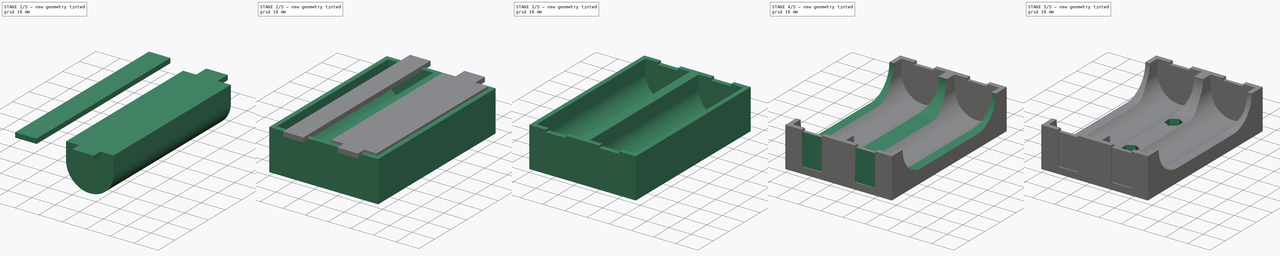
[diagram: build sequence overview — one tinted view per stage of 5, left to right]
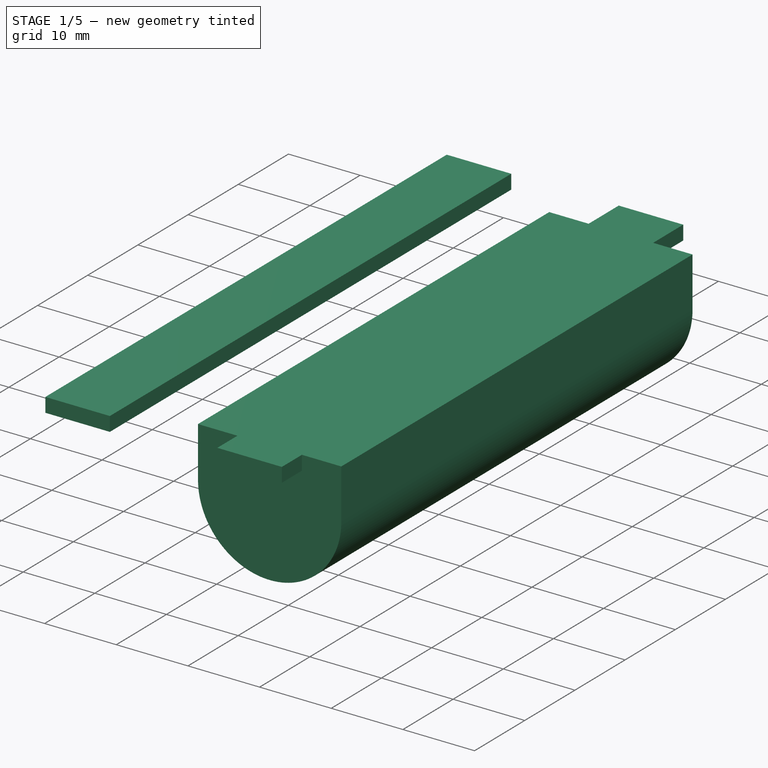
[diagram: stage 1 of 5 — iso view after this stage's code; geometry added in this stage tinted green]
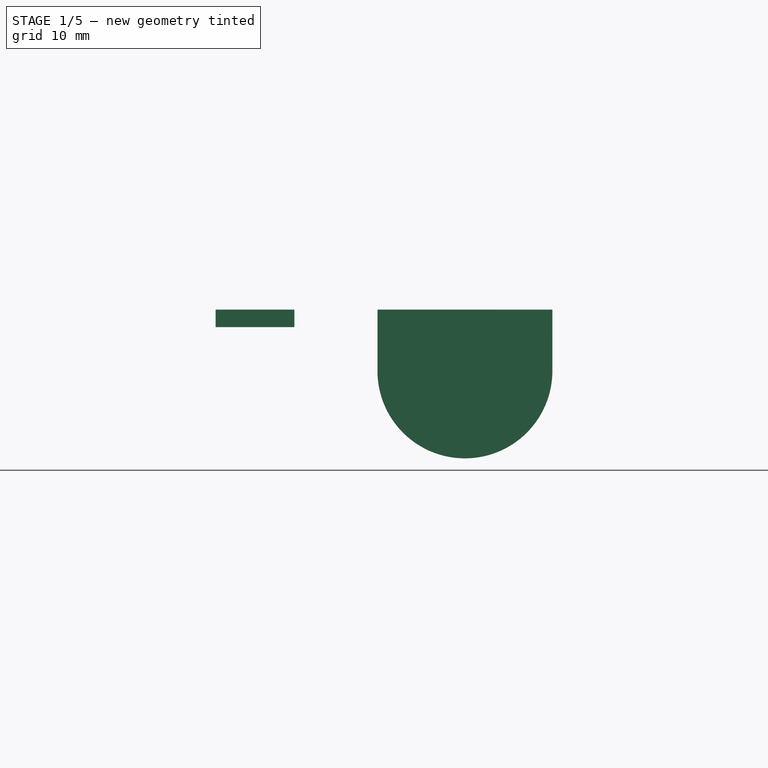
[diagram: stage 1 of 5 — front view after this stage's code; geometry added in this stage tinted green]
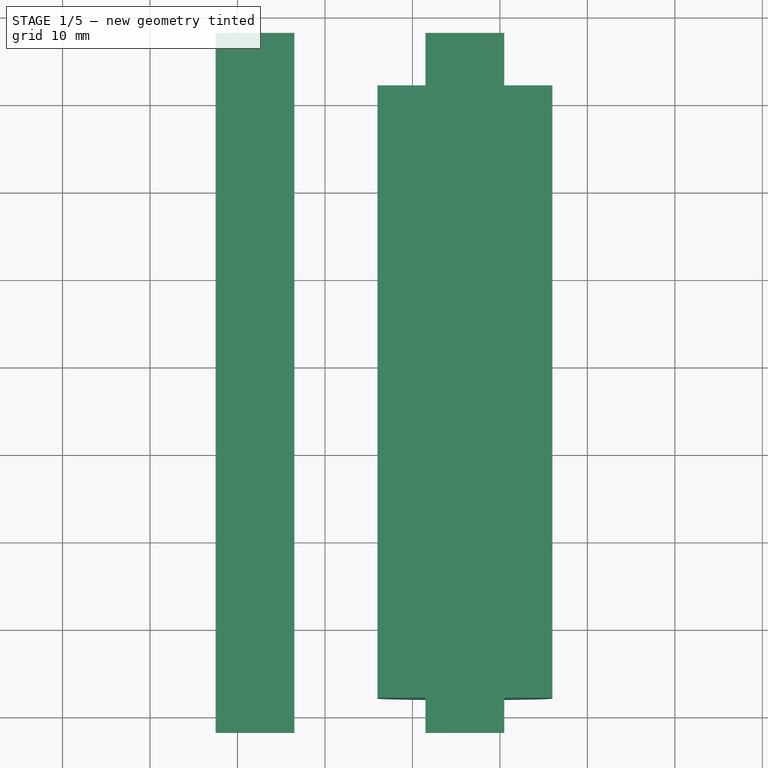
[diagram: stage 1 of 5 — top view after this stage's code; geometry added in this stage tinted green]
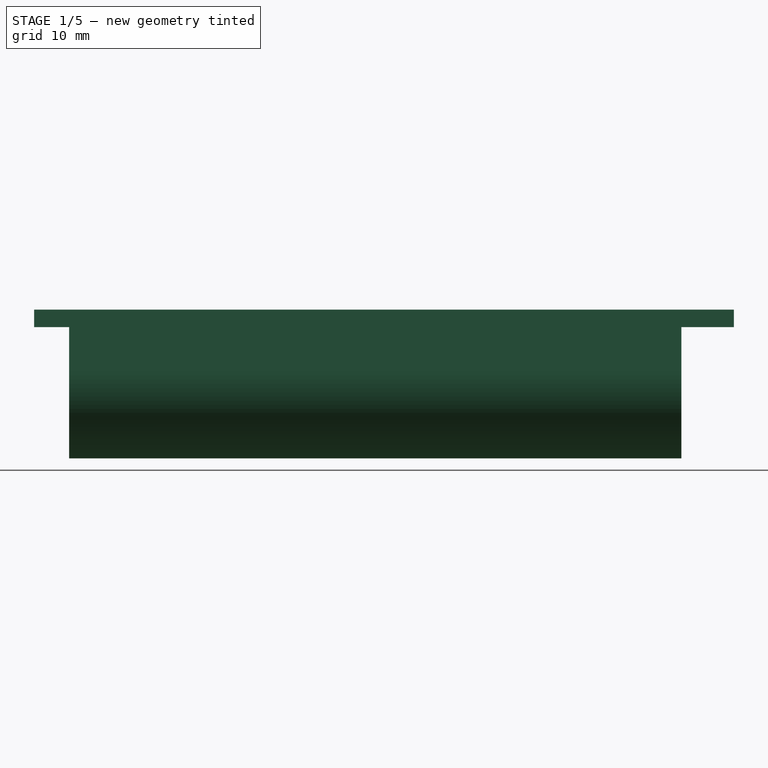
[diagram: stage 1 of 5 — right view after this stage's code; geometry added in this stage tinted green]
FCSTD DOCUMENT
Label: BatterySled
objects: Sketcher::SketchObject×10, PartDesign::Pocket×6, PartDesign::Pad×5, Part::Cut×4, App::DocumentObjectGroup×1
note: 30 computed .brp shape members not serialized (recipe doc carries the construction recipe); baked Part::Feature solids carry a one-line shape summary decoded from their .brp

FEATURE [Sketcher::SketchObject] Sketch002
  Placement = pos=(0,0,0) rot=(1,0,0;1.5708rad)
  sketch-geometry (4):
    g0: LineSegment StartX=25 StartY=19 StartZ=0 EndX=45 EndY=19 EndZ=0
    g1: LineSegment StartX=45 StartY=19 StartZ=0 EndX=45 EndY=12 EndZ=0
    g2: LineSegment StartX=25 StartY=12 StartZ=0 EndX=25 EndY=19 EndZ=0
    g3: ArcOfCircle CenterX=35 CenterY=12 CenterZ=0 NormalX=0 NormalY=0 NormalZ=1 Radius=10 StartAngle=3.14159 EndAngle=6.28319
  constraints (13):
    c: Coincident(g0,g1)
    c: Coincident(g2,g0)
    c: Horizontal(g0)
    c: Vertical(g1)
    c: Vertical(g2)
    c: Coincident(g3,g1)
    c: Coincident(g3,g2)
    c: Tangent(g3,g2)
    c: DistanceX(g0) = 20
    c: DistanceY(g2) = 7
    c: Tangent(g3,g1)
    c: DistanceX(g3) = 35
    c: DistanceY(g3) = 12
FEATURE [PartDesign::Pad] Pad002
  Length = 70
  MirroredExtent = false
  Placement = pos=(1,72,0) rot=(0,0,1;0rad)
  Sketch = -> Sketch002
FEATURE [Sketcher::SketchObject] Sketch003
  Placement = pos=(0,0,0) rot=(1,0,0;1.5708rad)
  sketch-geometry (4):
    g0: LineSegment StartX=7.5 StartY=17 StartZ=0 EndX=16.5 EndY=17 EndZ=0
    g1: LineSegment StartX=16.5 StartY=17 StartZ=0 EndX=16.5 EndY=19 EndZ=0
    g2: LineSegment StartX=16.5 StartY=19 StartZ=0 EndX=7.5 EndY=19 EndZ=0
    g3: LineSegment StartX=7.5 StartY=19 StartZ=0 EndX=7.5 EndY=17 EndZ=0
  constraints (12):
    c: Coincident(g0,g1)
    c: Coincident(g1,g2)
    c: Coincident(g2,g3)
    c: Coincident(g3,g0)
    c: Horizontal(g0)
    c: Horizontal(g2)
    c: Vertical(g1)
    c: Vertical(g3)
    c: DistanceX(g0) = 9
    c: DistanceY(g3) = -2
    c: DistanceX(g0) = 7.5
    c: DistanceY(g0) = 17
FEATURE [PartDesign::Pad] Pad003
  Length = 80
  MirroredExtent = false
  Placement = pos=(0,78,0) rot=(0,0,1;0rad)
  Sketch = -> Sketch003
FEATURE [PartDesign::Pad] Pad004
  Length = 80
  MirroredExtent = false
  Placement = pos=(24,78,0) rot=(0,0,1;0rad)
  Sketch = -> Sketch003
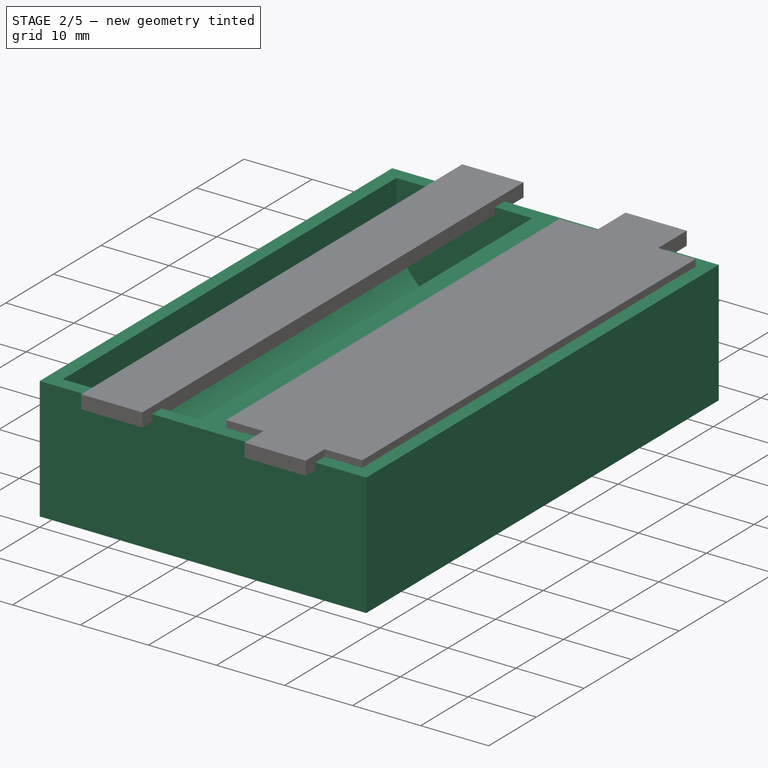
[diagram: stage 2 of 5 — iso view after this stage's code; geometry added in this stage tinted green]
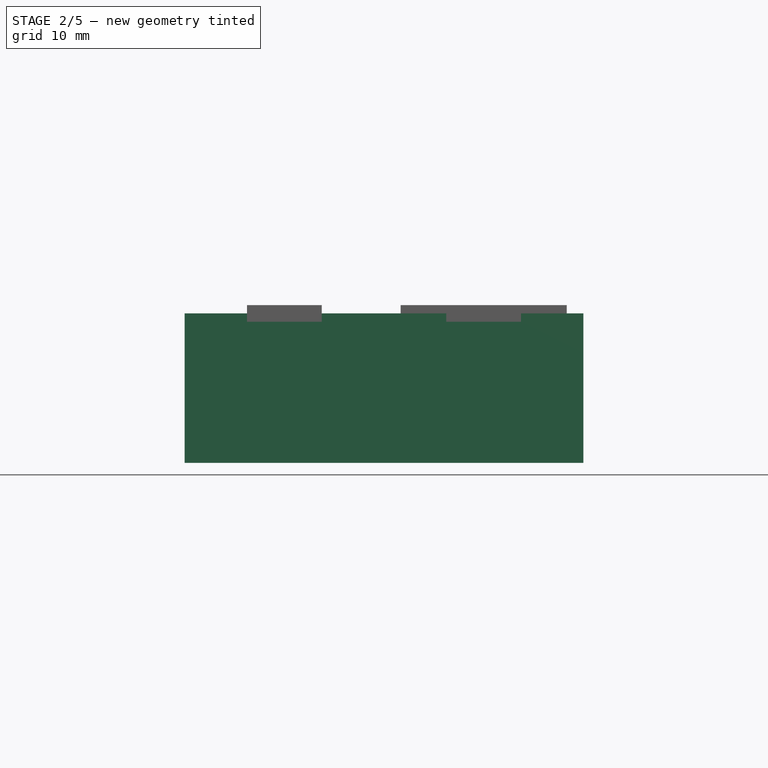
[diagram: stage 2 of 5 — front view after this stage's code; geometry added in this stage tinted green]
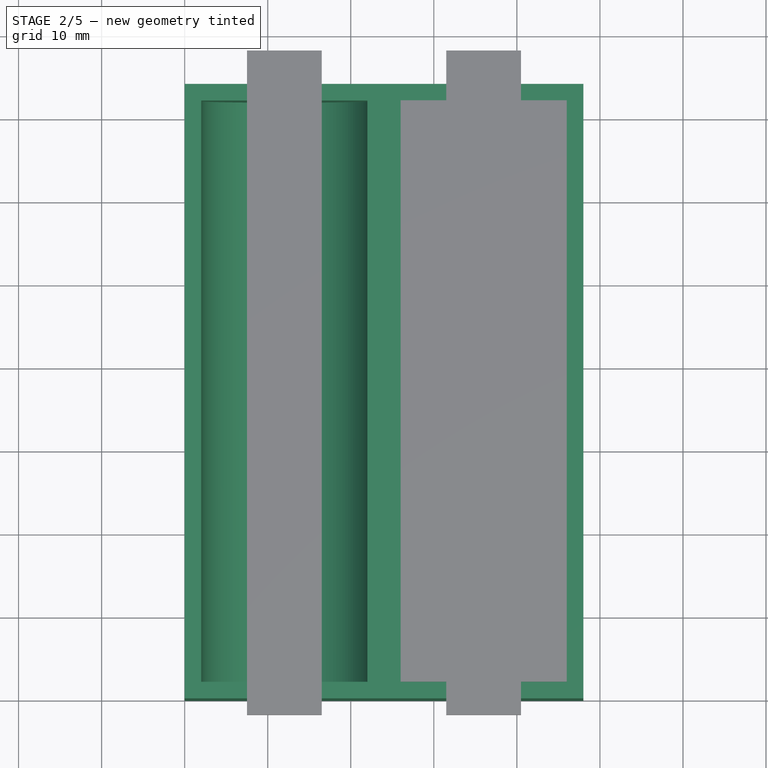
[diagram: stage 2 of 5 — top view after this stage's code; geometry added in this stage tinted green]
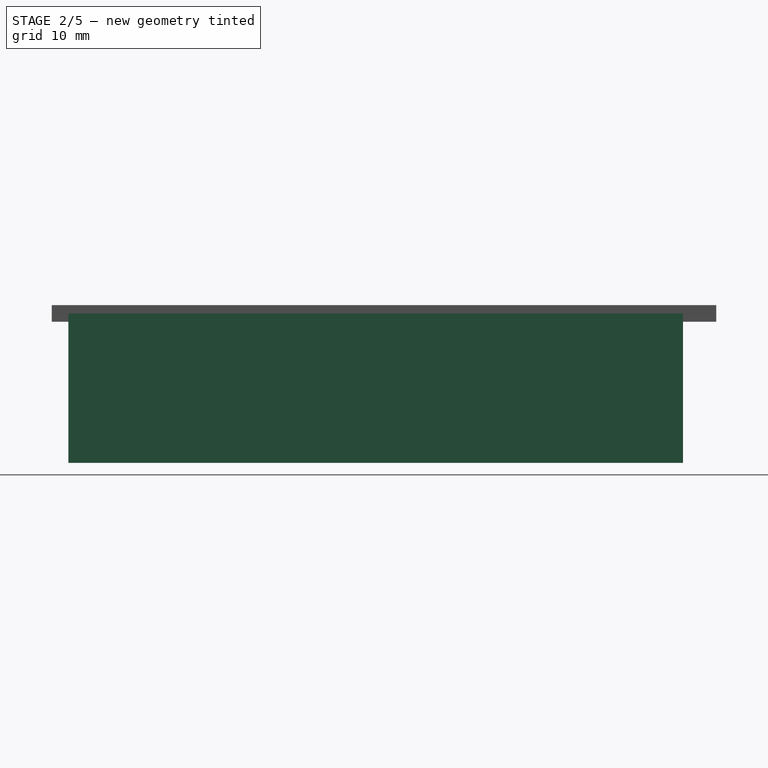
[diagram: stage 2 of 5 — right view after this stage's code; geometry added in this stage tinted green]
FEATURE [Sketcher::SketchObject] Sketch
  sketch-geometry (4):
    g0: LineSegment StartX=0 StartY=0 StartZ=0 EndX=48 EndY=0 EndZ=0
    g1: LineSegment StartX=48 StartY=0 StartZ=0 EndX=48 EndY=74 EndZ=0
    g2: LineSegment StartX=48 StartY=74 StartZ=0 EndX=0 EndY=74 EndZ=0
    g3: LineSegment StartX=0 StartY=74 StartZ=0 EndX=0 EndY=0 EndZ=0
  constraints (12):
    c: Coincident(g0,g1)
    c: Coincident(g1,g2)
    c: Coincident(g2,g3)
    c: Coincident(g3,g0)
    c: Horizontal(g0)
    c: Horizontal(g2)
    c: Vertical(g1)
    c: Vertical(g3)
    c: DistanceY(g3) = -74
    c: DistanceX(g0) = 48
    c: DistanceX(g0) = 0
    c: DistanceY(g0) = 0
FEATURE [PartDesign::Pad] Pad
  Length = 18
  MirroredExtent = false
  Sketch = -> Sketch
FEATURE [Sketcher::SketchObject] Sketch001
  Placement = pos=(0,0,0) rot=(1,0,0;1.5708rad)
  sketch-geometry (4):
    g0: LineSegment StartX=2 StartY=19 StartZ=0 EndX=22 EndY=19 EndZ=0
    g1: LineSegment StartX=22 StartY=19 StartZ=0 EndX=22 EndY=12 EndZ=0
    g2: LineSegment StartX=2 StartY=12 StartZ=0 EndX=2 EndY=19 EndZ=0
    g3: ArcOfCircle CenterX=12 CenterY=12 CenterZ=0 NormalX=0 NormalY=0 NormalZ=1 Radius=10 StartAngle=3.1416 EndAngle=6.28319
  constraints (13):
    c: Coincident(g0,g1)
    c: Coincident(g2,g0)
    c: Horizontal(g0)
    c: Vertical(g1)
    c: Vertical(g2)
    c: Coincident(g3,g1)
    c: Coincident(g3,g2)
    c: Tangent(g3,g2)
    c: DistanceX(g0) = 20
    c: DistanceY(g2) = 7
    c: Tangent(g3,g1)
    c: DistanceX(g3) = 12
    c: DistanceY(g3) = 12
FEATURE [PartDesign::Pad] Pad001
  Length = 70
  MirroredExtent = false
  Placement = pos=(0,72,0) rot=(0,0,1;0rad)
  Sketch = -> Sketch001
FEATURE [Part::Cut] Cut
  Base = -> Pad
  Tool = -> Pad001
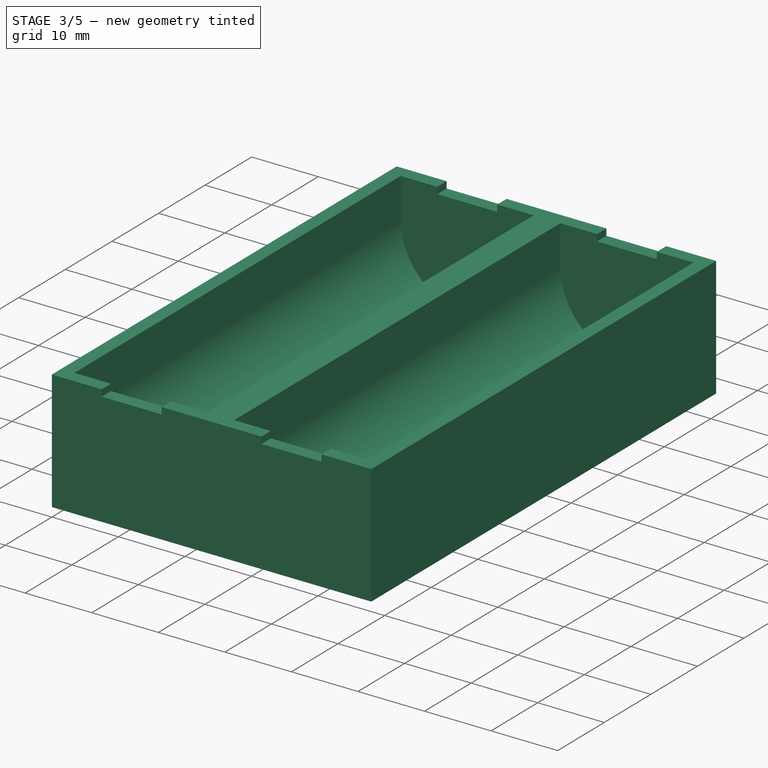
[diagram: stage 3 of 5 — iso view after this stage's code; geometry added in this stage tinted green]
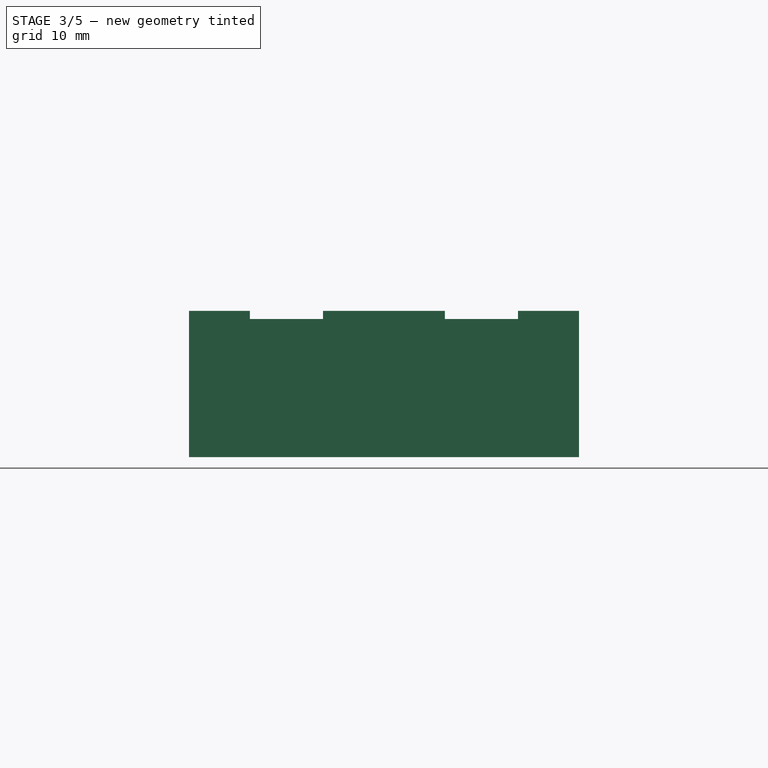
[diagram: stage 3 of 5 — front view after this stage's code; geometry added in this stage tinted green]
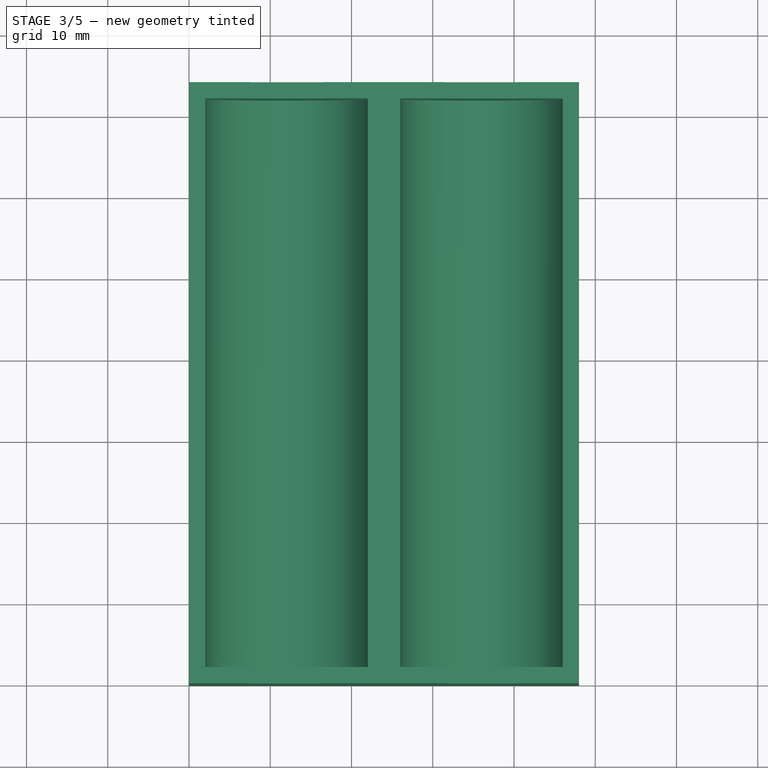
[diagram: stage 3 of 5 — top view after this stage's code; geometry added in this stage tinted green]
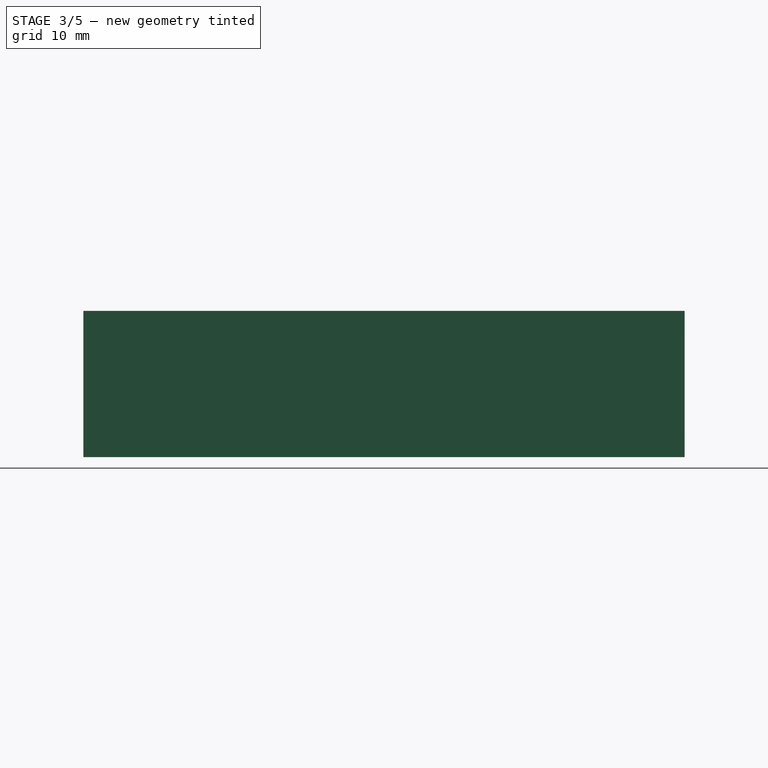
[diagram: stage 3 of 5 — right view after this stage's code; geometry added in this stage tinted green]
FEATURE [Part::Cut] Cut001
  Base = -> Cut
  Tool = -> Pad002
FEATURE [Part::Cut] Cut002
  Base = -> Cut001
  Tool = -> Pad003
FEATURE [Part::Cut] Cut003
  Base = -> Cut002
  Tool = -> Pad004
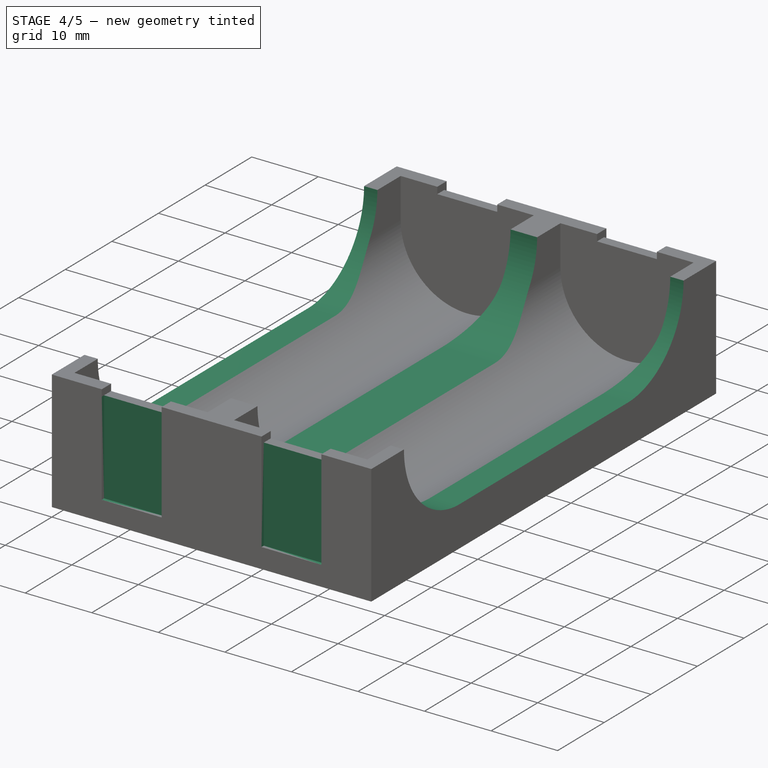
[diagram: stage 4 of 5 — iso view after this stage's code; geometry added in this stage tinted green]
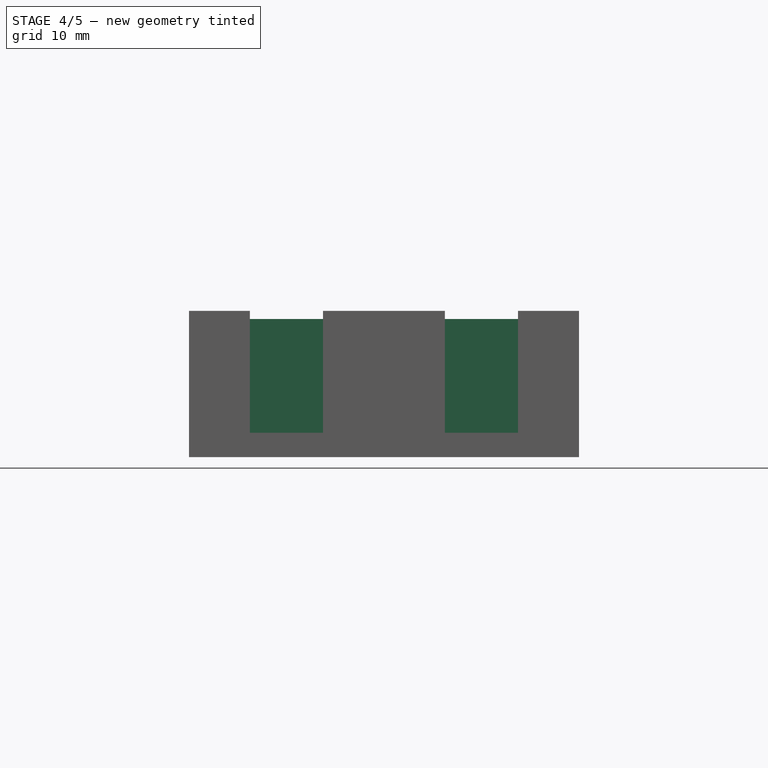
[diagram: stage 4 of 5 — front view after this stage's code; geometry added in this stage tinted green]
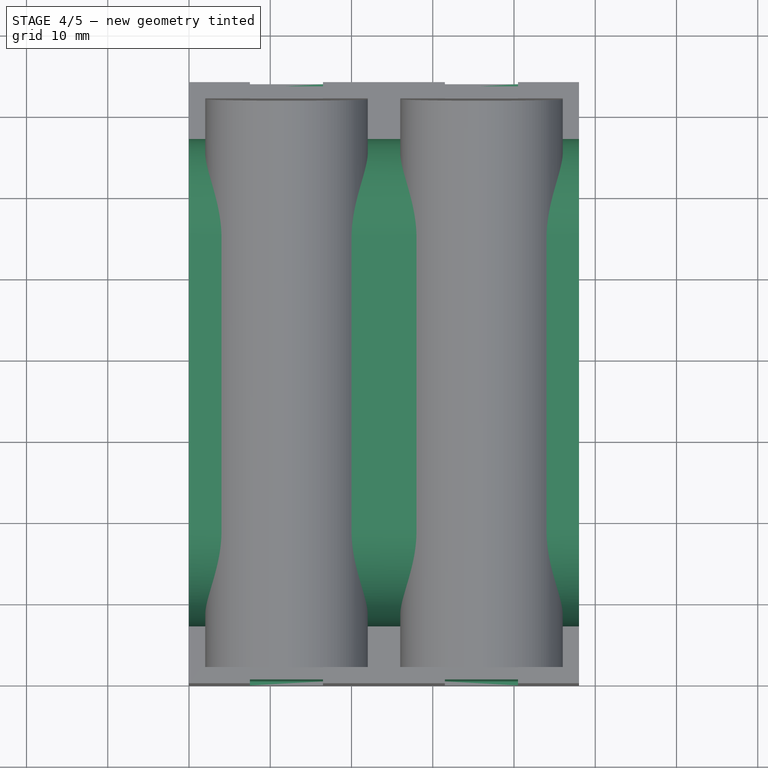
[diagram: stage 4 of 5 — top view after this stage's code; geometry added in this stage tinted green]
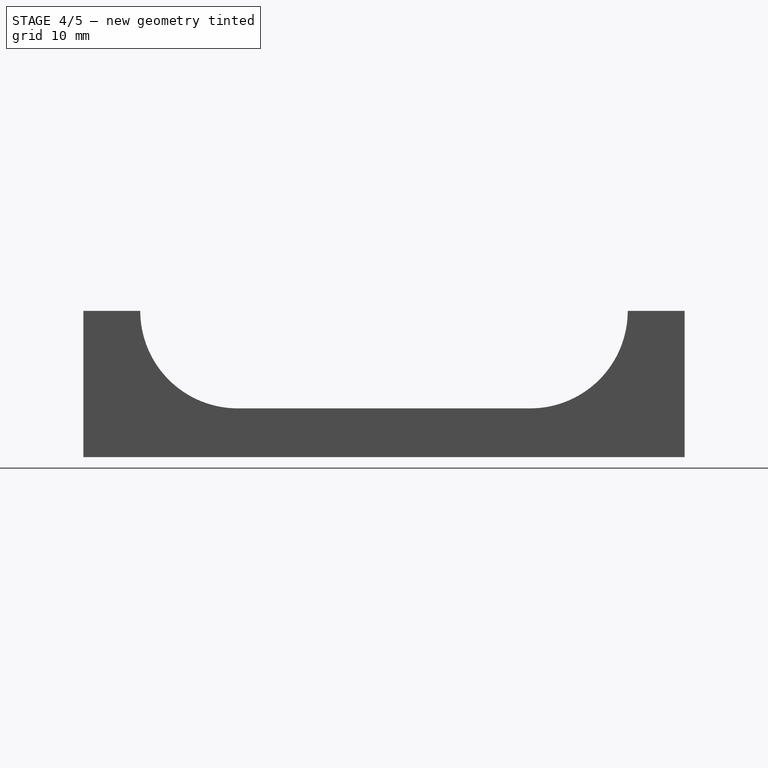
[diagram: stage 4 of 5 — right view after this stage's code; geometry added in this stage tinted green]
FEATURE [Sketcher::SketchObject] Sketch008
  Placement = pos=(0,74,0) rot=(0,0.707107,0.707107;3.14159rad)
  Support = -> Cut003 [Face2]
  sketch-geometry (9):
    g0: LineSegment StartX=-40.5 StartY=17 StartZ=0 EndX=-31.5 EndY=17 EndZ=0
    g1: LineSegment StartX=-31.5 StartY=17 StartZ=0 EndX=-31.5 EndY=3 EndZ=0
    g2: LineSegment StartX=-31.5 StartY=3 StartZ=0 EndX=-40.5 EndY=3 EndZ=0
    g3: LineSegment StartX=-40.5 StartY=3 StartZ=0 EndX=-40.5 EndY=17 EndZ=0
    g4: LineSegment StartX=-16.5 StartY=17 StartZ=0 EndX=-7.5 EndY=17 EndZ=0
    g5: LineSegment StartX=-7.5 StartY=17 StartZ=0 EndX=-7.5 EndY=3 EndZ=0
    g6: LineSegment StartX=-7.5 StartY=3 StartZ=0 EndX=-16.5 EndY=3 EndZ=0
    g7: LineSegment StartX=-16.5 StartY=3 StartZ=0 EndX=-16.5 EndY=17 EndZ=0
    g8: LineSegment [constr] StartX=-31.5 StartY=17 StartZ=0 EndX=-16.5 EndY=17 EndZ=0
  constraints (26):
    c: Coincident(g0,g1)
    c: Coincident(g1,g2)
    c: Coincident(g2,g3)
    c: Coincident(g3,g0)
    c: Horizontal(g0)
    c: Horizontal(g2)
    c: Vertical(g1)
    c: Vertical(g3)
    c: Coincident(g4,g5)
    c: Coincident(g5,g6)
    c: Coincident(g6,g7)
    c: Coincident(g7,g4)
    c: Horizontal(g4)
    c: Horizontal(g6)
    c: Vertical(g5)
    c: Vertical(g7)
    c: DistanceY(g3) = 14
    c: Equal(g7,g3)
    c: DistanceX(g0) = 9
    c: Equal(g4,g0)
    c: Horizontal(g8)
    c: Coincident(g8,g4)
    c: Coincident(g8,g0)
    c: DistanceX(g2) = -40.5
    c: DistanceY(g2) = 3
    c: DistanceX(g0,g4) = 15
FEATURE [App::DocumentObjectGroup] Group  label="BatterySled"
  Group = -> [Cut003]
FEATURE [PartDesign::Pocket] Pocket
  Length = 0.5
  Sketch = -> Sketch008
  Type = 0
FEATURE [Sketcher::SketchObject] Sketch006
  Placement = pos=(0,0,0) rot=(1,0,0;1.5708rad)
  Support = -> Pocket [Face3]
  sketch-geometry (9):
    g0: LineSegment StartX=7.5 StartY=17 StartZ=0 EndX=16.5 EndY=17 EndZ=0
    g1: LineSegment StartX=16.5 StartY=17 StartZ=0 EndX=16.5 EndY=3 EndZ=0
    g2: LineSegment StartX=16.5 StartY=3 StartZ=0 EndX=7.5 EndY=3 EndZ=0
    g3: LineSegment StartX=7.5 StartY=3 StartZ=0 EndX=7.5 EndY=17 EndZ=0
    g4: LineSegment StartX=31.5 StartY=3 StartZ=0 EndX=40.5 EndY=3 EndZ=0
    g5: LineSegment StartX=40.5 StartY=3 StartZ=0 EndX=40.5 EndY=17 EndZ=0
    g6: LineSegment StartX=40.5 StartY=17 StartZ=0 EndX=31.5 EndY=17 EndZ=0
    g7: LineSegment StartX=31.5 StartY=17 StartZ=0 EndX=31.5 EndY=3 EndZ=0
    g8: LineSegment [constr] StartX=31.5 StartY=17 StartZ=0 EndX=16.5 EndY=17 EndZ=0
  constraints (26):
    c: Coincident(g0,g1)
    c: Coincident(g1,g2)
    c: Coincident(g2,g3)
    c: Coincident(g3,g0)
    c: Horizontal(g0)
    c: Horizontal(g2)
    c: Vertical(g1)
    c: Vertical(g3)
    c: DistanceX(g0) = 9
    c: DistanceY(g3) = 14
    c: DistanceX(g2) = 7.5
    c: DistanceY(g2) = 3
    c: Coincident(g4,g5)
    c: Coincident(g5,g6)
    c: Coincident(g6,g7)
    c: Coincident(g7,g4)
    c: Horizontal(g4)
    c: Horizontal(g6)
    c: Vertical(g5)
    c: Vertical(g7)
    c: Equal(g6,g0)
    c: Equal(g7,g3)
    c: Horizontal(g8)
    c: Coincident(g8,g6)
    c: Coincident(g8,g0)
    c: DistanceX(g8) = -15
FEATURE [PartDesign::Pocket] Pocket001
  Length = 0.5
  Sketch = -> Sketch006
  Type = 0
FEATURE [Sketcher::SketchObject] Sketch009
  Placement = pos=(48,0,0) rot=(0.57735,0.57735,0.57735;2.0944rad)
  Support = -> Pocket001 [Face16]
  sketch-geometry (6):
    g0: ArcOfCircle CenterX=19 CenterY=18 CenterZ=0 NormalX=0 NormalY=0 NormalZ=1 Radius=12 StartAngle=3.14159 EndAngle=4.71239
    g1: LineSegment StartX=7 StartY=18 StartZ=0 EndX=19 EndY=18 EndZ=0
    g2: LineSegment StartX=19 StartY=18 StartZ=0 EndX=55 EndY=18 EndZ=0
    g3: LineSegment StartX=55 StartY=18 StartZ=0 EndX=67 EndY=18 EndZ=0
    g4: ArcOfCircle CenterX=55 CenterY=18 CenterZ=0 NormalX=0 NormalY=0 NormalZ=1 Radius=12 StartAngle=4.71239 EndAngle=6.28319
    g5: LineSegment StartX=19 StartY=6 StartZ=0 EndX=55 EndY=6 EndZ=0
  constraints (18):
    c: Horizontal(g1)
    c: Horizontal(g2)
    c: Horizontal(g3)
    c: Horizontal(g5)
    c: Coincident(g1,g0)
    c: Coincident(g1,g0)
    c: Coincident(g2,g0)
    c: Coincident(g4,g2)
    c: Coincident(g3,g2)
    c: Coincident(g4,g3)
    c: Coincident(g4,g5)
    c: Coincident(g5,g0)
    c: Tangent(g5,g0)
    c: Tangent(g5,g4)
    c: DistanceX(g1) = 12
    c: DistanceX(g2) = 36
    c: DistanceX(g0) = 7
    c: DistanceY(g0) = 18
FEATURE [PartDesign::Pocket] Pocket002
  Length = 48
  Sketch = -> Sketch009
  Type = 0
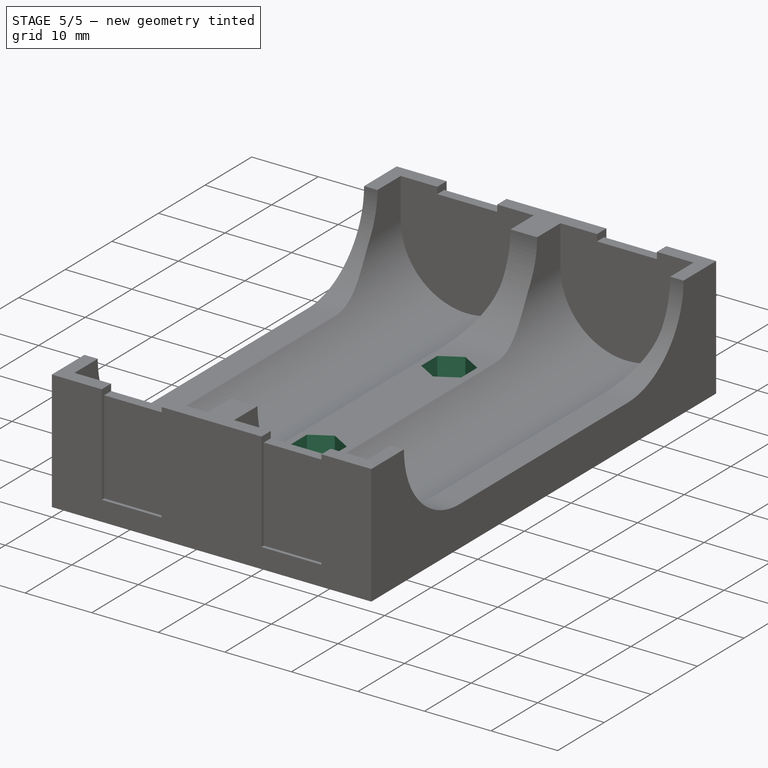
[diagram: stage 5 of 5 — iso view after this stage's code; geometry added in this stage tinted green]
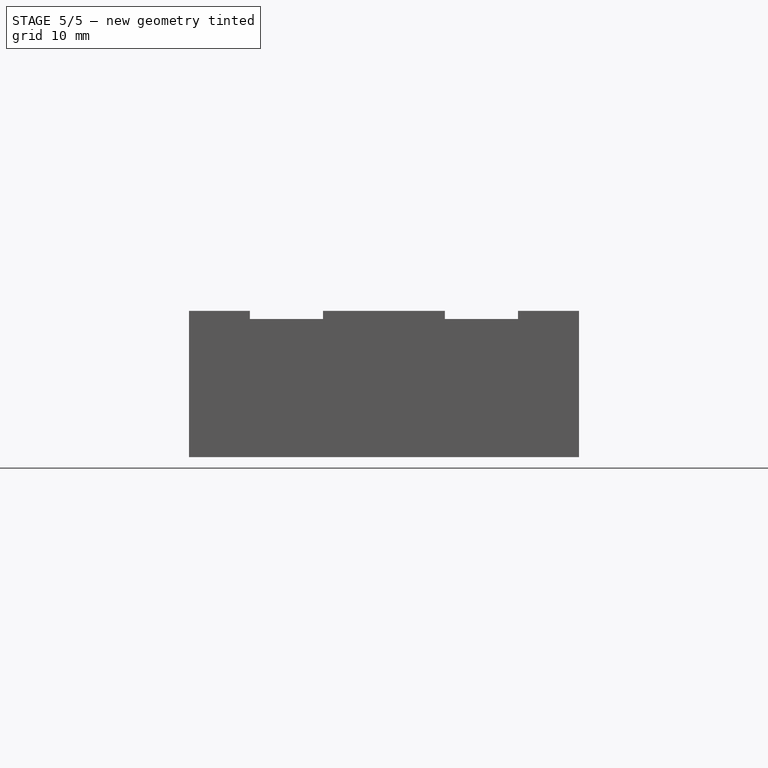
[diagram: stage 5 of 5 — front view after this stage's code; geometry added in this stage tinted green]
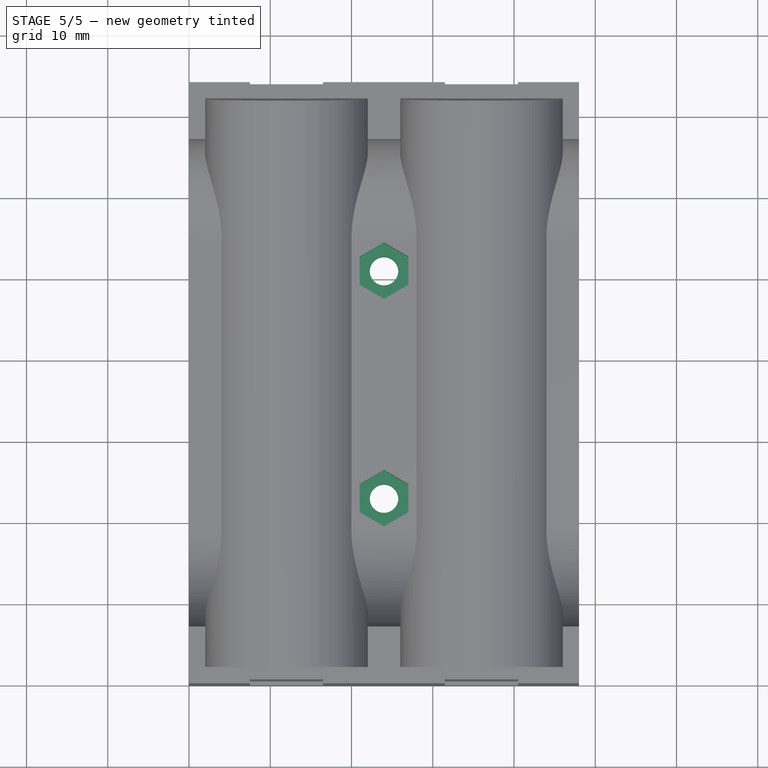
[diagram: stage 5 of 5 — top view after this stage's code; geometry added in this stage tinted green]
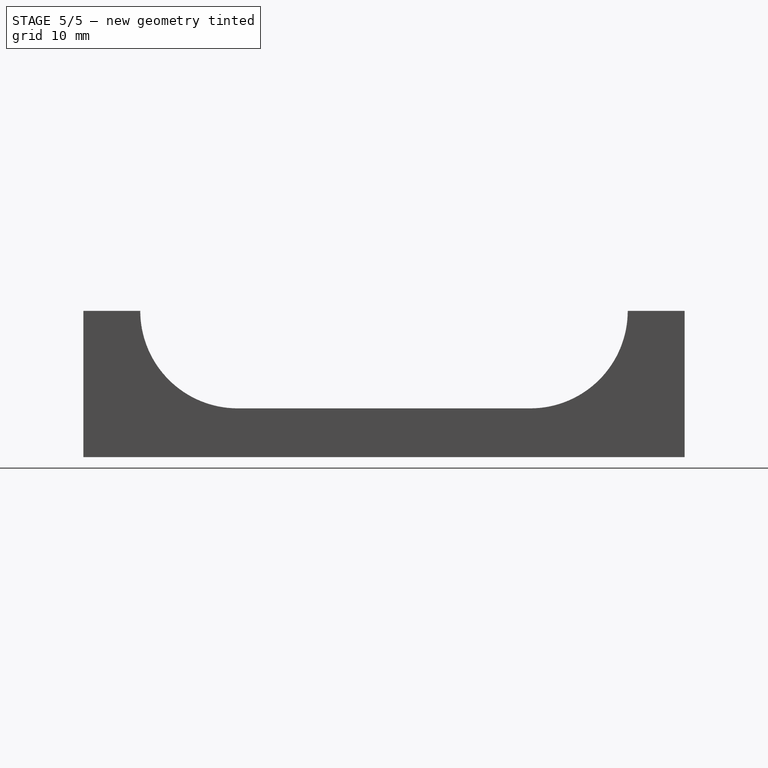
[diagram: stage 5 of 5 — right view after this stage's code; geometry added in this stage tinted green]
FEATURE [Sketcher::SketchObject] Sketch010
  Placement = pos=(0,0,6) rot=(0,0,1;0rad)
  Support = -> Pocket002 [Face40]
  sketch-geometry (12):
    g0: LineSegment StartX=21 StartY=21.2679 StartZ=0 EndX=21 EndY=24.7321 EndZ=0
    g1: LineSegment StartX=21 StartY=24.7321 StartZ=0 EndX=24 EndY=26.4641 EndZ=0
    g2: LineSegment StartX=24 StartY=26.4641 StartZ=0 EndX=27 EndY=24.7321 EndZ=0
    g3: LineSegment StartX=27 StartY=24.7321 StartZ=0 EndX=27 EndY=21.2679 EndZ=0
    g4: LineSegment StartX=27 StartY=21.2679 StartZ=0 EndX=24 EndY=19.5359 EndZ=0
    g5: LineSegment StartX=24 StartY=19.5359 StartZ=0 EndX=21 EndY=21.2679 EndZ=0
    g6: LineSegment [constr] StartX=24 StartY=26.4641 StartZ=0 EndX=24 EndY=23 EndZ=0
    g7: LineSegment [constr] StartX=24 StartY=23 StartZ=0 EndX=24 EndY=19.5359 EndZ=0
    g8: LineSegment [constr] StartX=24 StartY=23 StartZ=0 EndX=27 EndY=24.7321 EndZ=0
    g9: LineSegment [constr] StartX=24 StartY=23 StartZ=0 EndX=27 EndY=21.2679 EndZ=0
    g10: LineSegment [constr] StartX=24 StartY=23 StartZ=0 EndX=21 EndY=24.7321 EndZ=0
    g11: LineSegment [constr] StartX=24 StartY=23 StartZ=0 EndX=21 EndY=21.2679 EndZ=0
  constraints (31):
    c: Vertical(g0)
    c: Coincident(g0,g1)
    c: Coincident(g1,g2)
    c: Coincident(g2,g3)
    c: Vertical(g3)
    c: Coincident(g3,g4)
    c: Coincident(g4,g5)
    c: Coincident(g5,g0)
    c: Coincident(g6,g7)
    c: Coincident(g10,g11)
    c: Coincident(g9,g8)
    c: Coincident(g8,g6)
    c: Coincident(g10,g6)
    c: Vertical(g6)
    c: Vertical(g7)
    c: Coincident(g6,g1)
    c: Coincident(g10,g0)
    c: Coincident(g11,g0)
    c: Coincident(g4,g7)
    c: Coincident(g9,g3)
    c: Coincident(g8,g2)
    c: Equal(g10,g11)
    c: Equal(g11,g7)
    c: Equal(g9,g7)
    c: Equal(g9,g8)
    c: Equal(g8,g6)
    c: Equal(g1,g0)
    c: Equal(g3,g4)
    c: DistanceX(g0,g3) = 6
    c: DistanceX(g6) = 24
    c: DistanceY(g6) = 23
FEATURE [PartDesign::Pocket] Pocket003
  Length = 3
  Sketch = -> Sketch010
  Type = 0
FEATURE [Sketcher::SketchObject] Sketch011
  Placement = pos=(0,0,6) rot=(0,0,1;0rad)
  Support = -> Pocket003 [Face40]
  sketch-geometry (12):
    g0: LineSegment StartX=21 StartY=49.2679 StartZ=0 EndX=21 EndY=52.7321 EndZ=0
    g1: LineSegment StartX=21 StartY=52.7321 StartZ=0 EndX=24 EndY=54.4641 EndZ=0
    g2: LineSegment StartX=24 StartY=54.4641 StartZ=0 EndX=27 EndY=52.7321 EndZ=0
    g3: LineSegment StartX=27 StartY=52.7321 StartZ=0 EndX=27 EndY=49.2679 EndZ=0
    g4: LineSegment StartX=27 StartY=49.2679 StartZ=0 EndX=24 EndY=47.5359 EndZ=0
    g5: LineSegment StartX=24 StartY=47.5359 StartZ=0 EndX=21 EndY=49.2679 EndZ=0
    g6: LineSegment [constr] StartX=24 StartY=54.4641 StartZ=0 EndX=24 EndY=51 EndZ=0
    g7: LineSegment [constr] StartX=24 StartY=51 StartZ=0 EndX=24 EndY=47.5359 EndZ=0
    g8: LineSegment [constr] StartX=24 StartY=51 StartZ=0 EndX=27 EndY=52.7321 EndZ=0
    g9: LineSegment [constr] StartX=24 StartY=51 StartZ=0 EndX=27 EndY=49.2679 EndZ=0
    g10: LineSegment [constr] StartX=24 StartY=51 StartZ=0 EndX=21 EndY=52.7321 EndZ=0
    g11: LineSegment [constr] StartX=24 StartY=51 StartZ=0 EndX=21 EndY=49.2679 EndZ=0
  constraints (31):
    c: Vertical(g0)
    c: Coincident(g0,g1)
    c: Coincident(g1,g2)
    c: Coincident(g2,g3)
    c: Vertical(g3)
    c: Coincident(g3,g4)
    c: Coincident(g4,g5)
    c: Coincident(g5,g0)
    c: Coincident(g6,g7)
    c: Coincident(g10,g11)
    c: Coincident(g9,g8)
    c: Coincident(g8,g6)
    c: Coincident(g10,g6)
    c: Vertical(g6)
    c: Vertical(g7)
    c: Coincident(g6,g1)
    c: Coincident(g10,g0)
    c: Coincident(g11,g0)
    c: Coincident(g4,g7)
    c: Coincident(g9,g3)
    c: Coincident(g8,g2)
    c: Equal(g10,g11)
    c: Equal(g11,g7)
    c: Equal(g9,g7)
    c: Equal(g9,g8)
    c: Equal(g8,g6)
    c: Equal(g1,g0)
    c: Equal(g3,g4)
    c: DistanceX(g0,g3) = 6
    c: DistanceX(g6) = 24
    c: DistanceY(g6) = 51
FEATURE [PartDesign::Pocket] Pocket004
  Length = 3
  Sketch = -> Sketch011
  Type = 0
FEATURE [Sketcher::SketchObject] Sketch012
  Placement = pos=(0,0,0) rot=(1,0,0;3.14159rad)
  Support = -> Pocket004 [Face13]
  sketch-geometry (3):
    g0: Circle CenterX=24 CenterY=-23 CenterZ=0 NormalX=0 NormalY=0 NormalZ=1 Radius=1.75
    g1: Circle CenterX=24 CenterY=-51 CenterZ=0 NormalX=0 NormalY=0 NormalZ=1 Radius=1.75
    g2: LineSegment [constr] StartX=24 StartY=-23 StartZ=0 EndX=24 EndY=-51 EndZ=0
  constraints (8):
    c: Radius(g1) = 1.75
    c: Equal(g1,g0)
    c: Vertical(g2)
    c: Coincident(g0,g2)
    c: Coincident(g1,g2)
    c: DistanceX(g0) = 24
    c: DistanceY(g0) = -23
    c: DistanceY(g2) = -28
FEATURE [PartDesign::Pocket] Pocket005
  Length = 5
  Sketch = -> Sketch012
  Type = 0
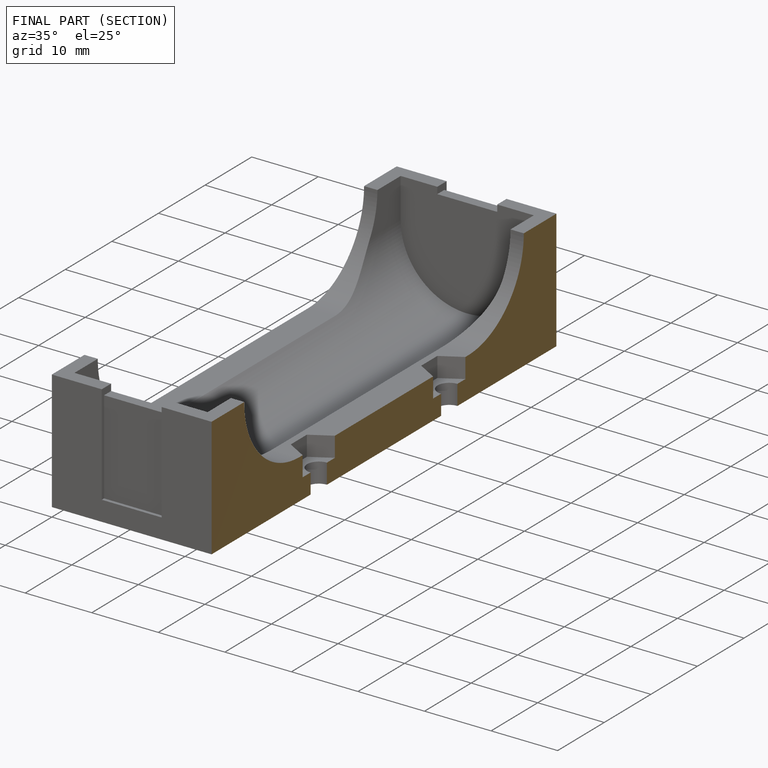
[diagram: finished part — half-section view (interior)]
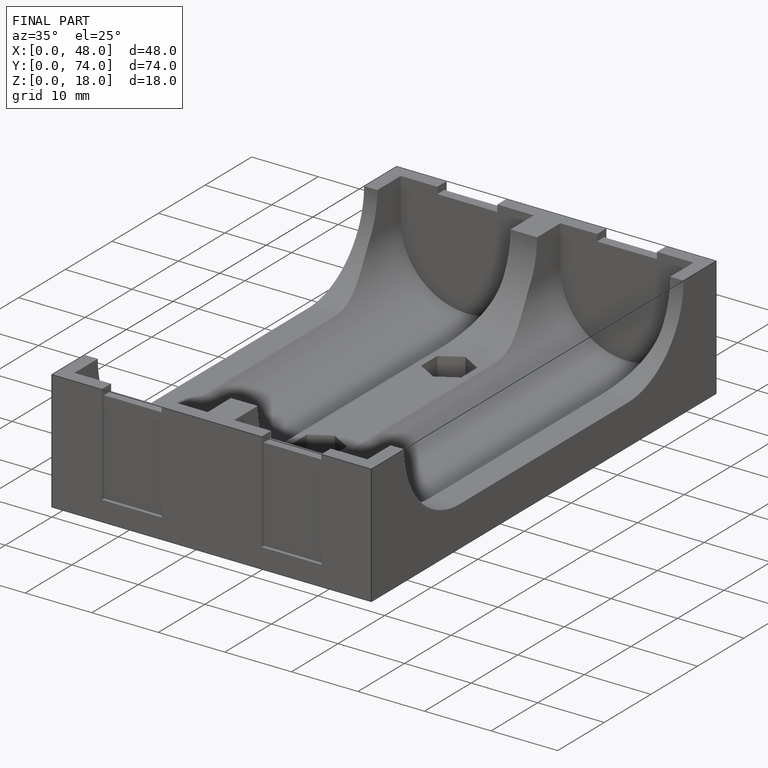
[diagram: finished part — iso view with bounding-box wireframe]
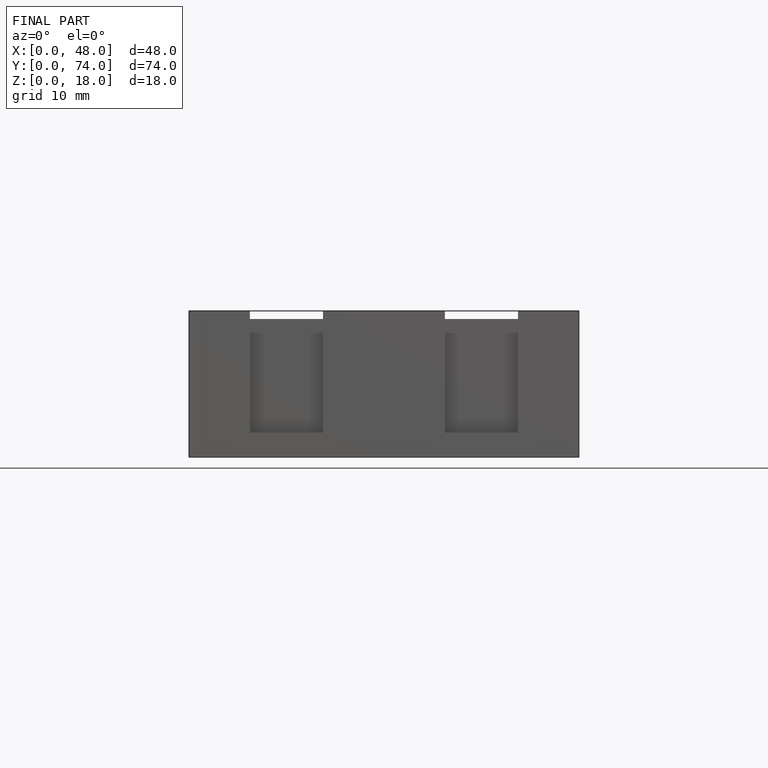
[diagram: finished part — front view with bounding-box wireframe]
